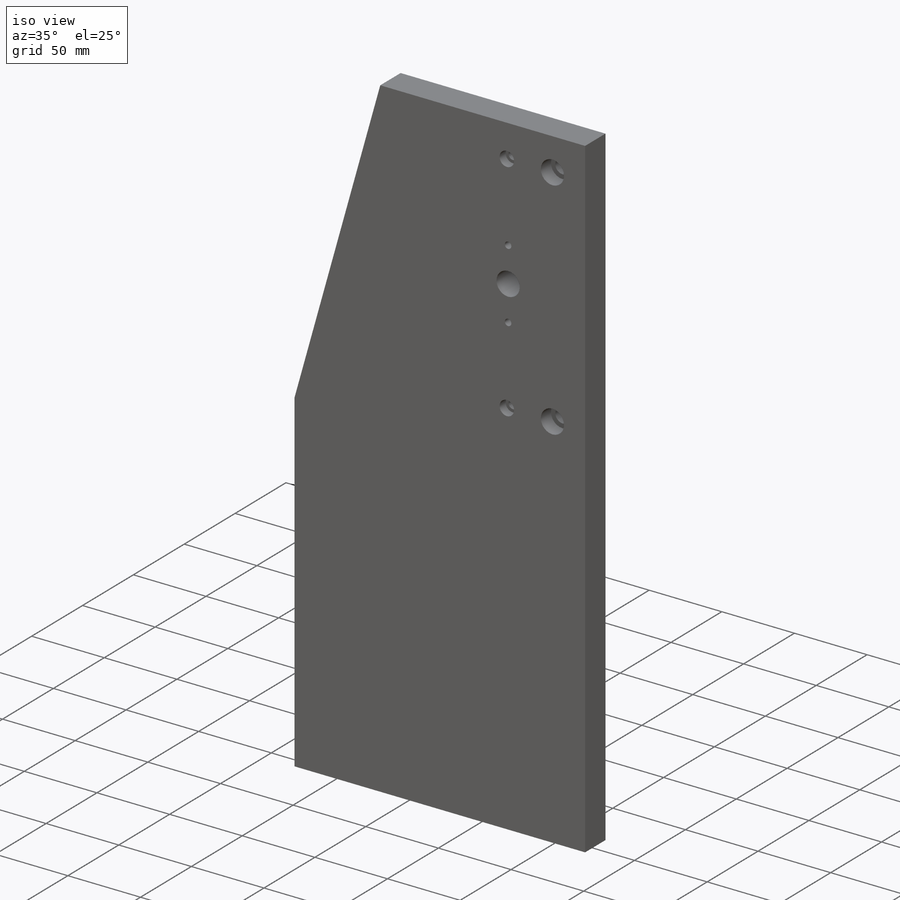
[diagram: iso view]
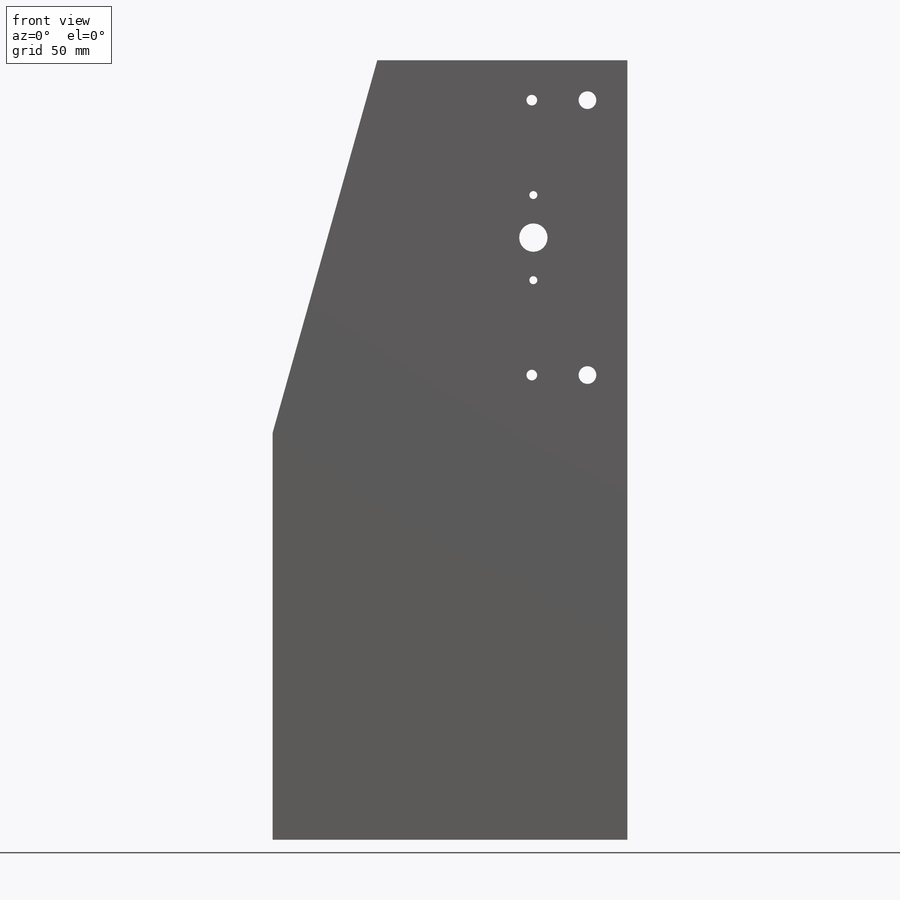
[diagram: front view]
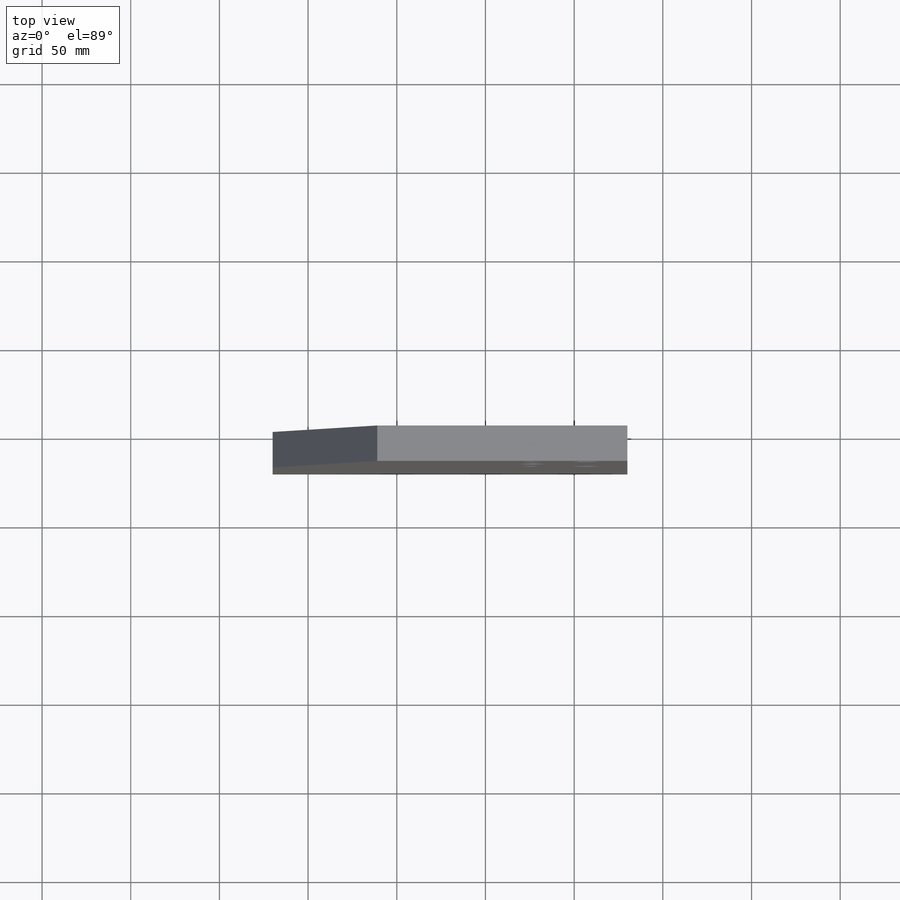
[diagram: top view]
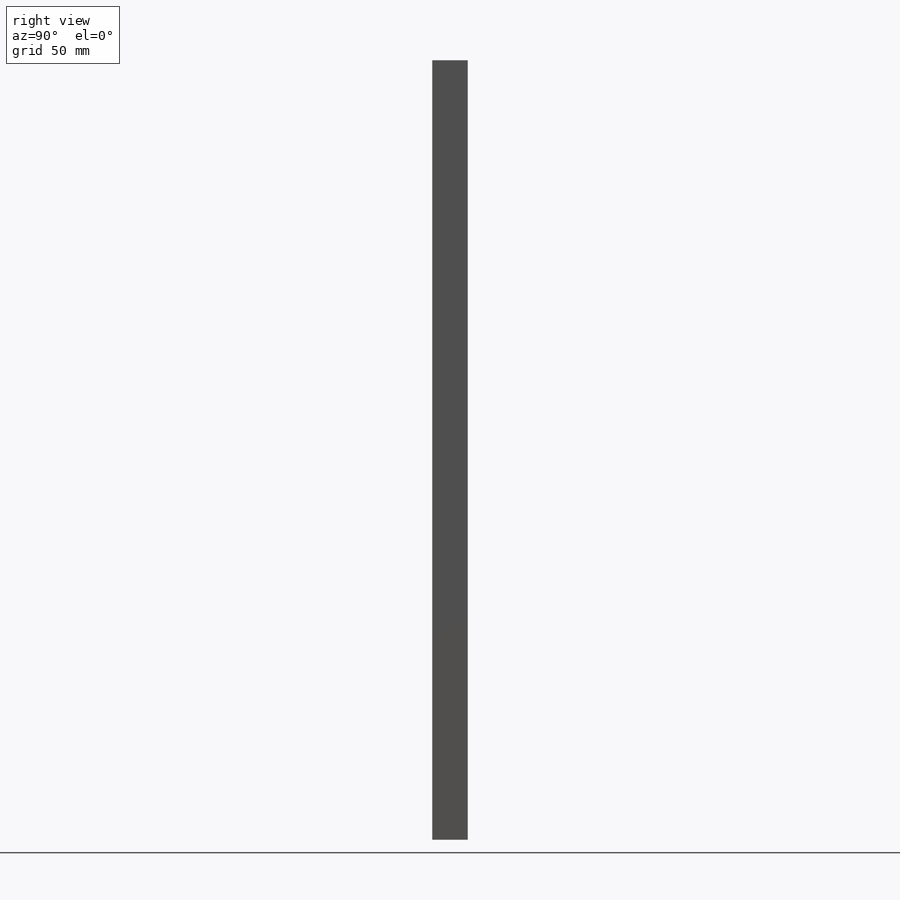
[diagram: right view]
SOLIDWORKS PART (.sldprt)
format: sldprt  version: not decoded by parser v0  size: 308,224 bytes
history: native  units: mm
features: sketch x4, cut_extrude x3, material x1, extrude x1 (+12 scaffold rows collapsed)
feature tree (21):
  scaffold x12  (default folders/planes/origin — collapsed)
  material  "7079 Alloy"
  sketch  "Sketch1"  dims[c1.D1=439.5mm c1.D2=180.0mm c2.D1=31.375mm c2.D2=31.375mm c2.D3=30.0mm]
  extrude  "Extrude1"  Depth=20mm
  sketch  "Sketch3"  dims[D1=9.0mm]
  cut_extrude  "Cut-Extrude2"  Depth=10mm
  sketch  "Sketch4"  dims[D1=20.0mm]
  cut_extrude  "Cut-Extrude3"  Depth=60mm
  sketch  "Sketch5"  dims[D1=~4.539149mm]
  cut_extrude  "Cut-Extrude4"  Depth=6mm
decode coverage: 8 of 8 modeling features carry decoded parameters
note: ~ marks probable driven/reference dimensions
note: suppression state not decoded; provenance and decode notes live in map.json
